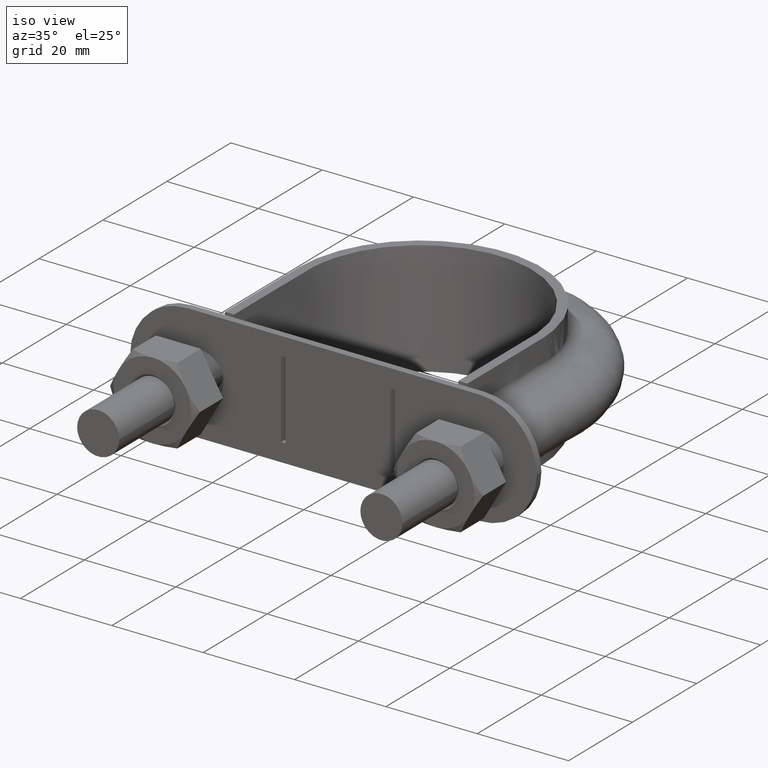
[diagram: clean part render]
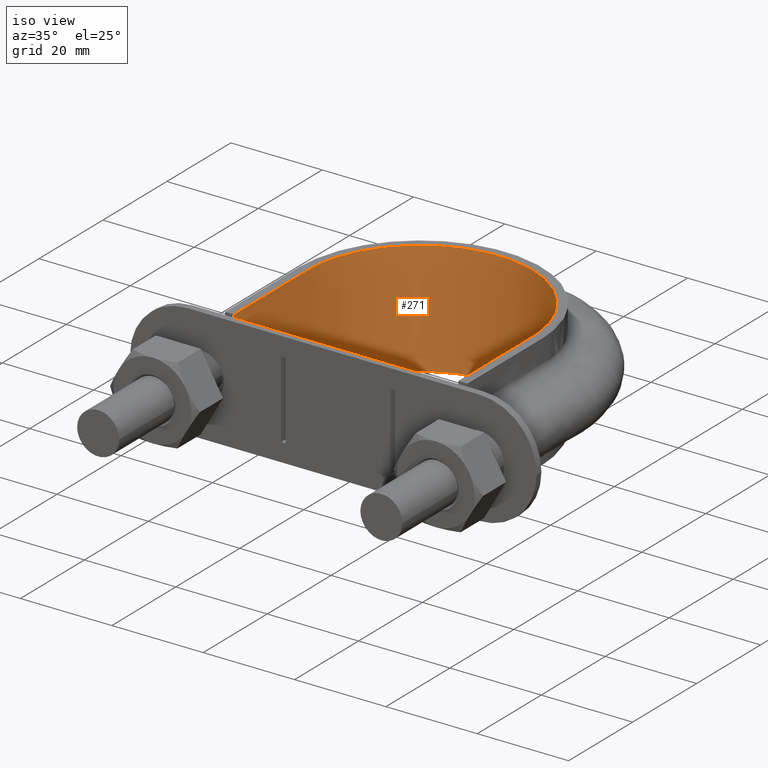
[diagram: same view with one face highlighted and labeled with its STEP entity id]
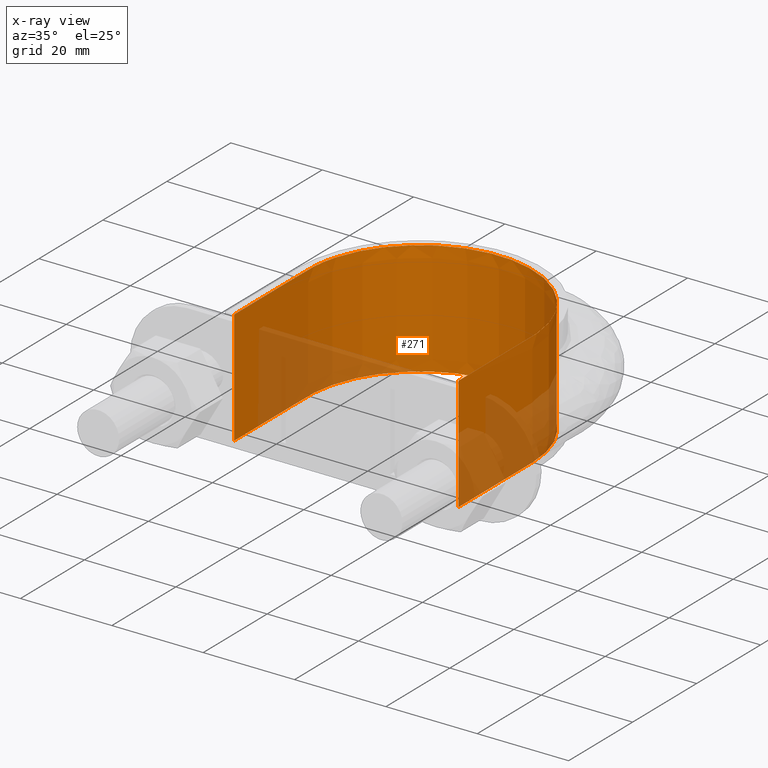
[diagram: x-ray of the same camera — body ghosted, the highlighted face saturated]
A machine part, iso view. The second image highlights one B-rep face of the part: STEP entity #271.
The next image is the same camera in x-ray: the body ghosted, the highlighted face saturated — about 27% of this face is hidden behind the body in this view.
In plain terms, the highlighted face is a SurfaceOfExtrusion surface.
Its self-contained STEP definition (entity closure, byte-faithful):
#271 = ADVANCED_FACE( '', ( #391 ), #392, .T. );
#391 = FACE_OUTER_BOUND( '', #1174, .T. );
#392 = SURFACE_OF_LINEAR_EXTRUSION( '', #1175, #1176 );
#1174 = EDGE_LOOP( '', ( #1747, #1748, #1749, #1750 ) );
#1175 = B_SPLINE_CURVE_WITH_KNOTS( '', 3, ( #1751, #1752, #1753, #1754, #1755, #1756, #1757, #1758, #1759, #1760, #1761, #1762, #1763, #1764, #1765, #1766, #1767 ), .UNSPECIFIED., .F., .F., ( 4, 3, 1, 1, 1, 1, 1, 1, 1, 3, 4 ), ( -7.85424354243542, -7.00000000000000, -6.50000000000000, -6.00000000000000, -5.00000000000000, -4.00000000000000, -3.00000000000000, -2.00000000000000, -1.50000000000000, -1.00000000000000, -0.145756457564576 ), .UNSPECIFIED. );
#1176 = VECTOR( '', #1768, 1000.00000000000 );
#1747 = ORIENTED_EDGE( '', *, *, #2545, .T. );
#1748 = ORIENTED_EDGE( '', *, *, #2558, .T. );
#1749 = ORIENTED_EDGE( '', *, *, #2551, .F. );
#1750 = ORIENTED_EDGE( '', *, *, #2555, .T. );
#1751 = CARTESIAN_POINT( '', ( 24.5500000000000, 33.3000000000000, 12.5000100000910 ) );
#1752 = CARTESIAN_POINT( '', ( 24.5500000000000, 41.0166666666667, 12.5000100000910 ) );
#1753 = CARTESIAN_POINT( '', ( 24.5500000000000, 48.7333333333333, 12.5000100000910 ) );
#1754 = CARTESIAN_POINT( '', ( 24.5500000000000, 56.4500000000000, 12.5000100000910 ) );
#1755 = CARTESIAN_POINT( '', ( 24.5500000000000, 58.5780025041717, 12.5000100000910 ) );
#1756 = CARTESIAN_POINT( '', ( 23.9738358905282, 62.8798607773325, 12.5000100000910 ) );
#1757 = CARTESIAN_POINT( '', ( 20.6884777838097, 70.8633071998794, 12.5000100000910 ) );
#1758 = CARTESIAN_POINT( '', ( 12.8483754366917, 78.7059313144219, 12.5000100000910 ) );
#1759 = CARTESIAN_POINT( '', ( 1.69986719242917E-014, 82.1470343427890, 12.5000100000910 ) );
#1760 = CARTESIAN_POINT( '', ( -12.8483754366917, 78.7059313144219, 12.5000100000910 ) );
#1761 = CARTESIAN_POINT( '', ( -20.6884777838097, 70.8633071998795, 12.5000100000910 ) );
#1762 = CARTESIAN_POINT( '', ( -23.9738358905281, 62.8798607773325, 12.5000100000910 ) );
#1763 = CARTESIAN_POINT( '', ( -24.5500000000000, 58.5780025041717, 12.5000100000910 ) );
#1764 = CARTESIAN_POINT( '', ( -24.5500000000000, 56.4500000000000, 12.5000100000910 ) );
#1765 = CARTESIAN_POINT( '', ( -24.5500000000000, 48.7333333333333, 12.5000100000910 ) );
#1766 = CARTESIAN_POINT( '', ( -24.5500000000000, 41.0166666666667, 12.5000100000910 ) );
#1767 = CARTESIAN_POINT( '', ( -24.5500000000000, 33.3000000000000, 12.5000100000910 ) );
#1768 = DIRECTION( '', ( 0.000000000000000, 0.000000000000000, -1.00000000000000 ) );
#2545 = EDGE_CURVE( '', #2785, #2786, #2787, .T. );
#2551 = EDGE_CURVE( '', #2795, #2798, #2799, .T. );
#2555 = EDGE_CURVE( '', #2795, #2785, #2805, .T. );
#2558 = EDGE_CURVE( '', #2786, #2798, #2808, .F. );
#2785 = VERTEX_POINT( '', #3183 );
#2786 = VERTEX_POINT( '', #3184 );
#2787 = LINE( '', #3185, #3186 );
#2795 = VERTEX_POINT( '', #3235 );
#2798 = VERTEX_POINT( '', #3239 );
#2799 = LINE( '', #3240, #3241 );
#2805 = B_SPLINE_CURVE_WITH_KNOTS( '', 3, ( #3287, #3288, #3289, #3290, #3291, #3292, #3293, #3294, #3295, #3296, #3297, #3298, #3299, #3300, #3301, #3302, #3303, #3304, #3305, #3306, #3307, #3308, #3309, #3310, #3311, #3312, #3313, #3314, #3315, #3316, #3317, #3318, #3319, #3320, #3321, #3322, #3323, #3324, #3325, #3326, #3327, #3328, #3329, #3330, #3331, #3332, #3333, #3334, #3335, #3336, #3337, #3338, #3339, #3340, #3341, #3342, #3343, #3344, #3345, #3346, #3347, #3348, #3349, #3350, #3351, #3352, #3353 ), .UNSPECIFIED., .F., .F., ( 4, 1, 2, 2, 2, 2, 2, 2, 2, 2, 2, 2, 2, 2, 2, 2, 2, 2, 2, 2, 2, 2, 2, 2, 2, 2, 2, 2, 2, 2, 2, 2, 1, 1, 4 ), ( 0.000000000000000, 0.0154145326467004, 0.0231217989700507, 0.0250486155508882, 0.0269754321317258, 0.0308290652934009, 0.0346826984550760, 0.0366095150359135, 0.0385363316167511, 0.0423899647784262, 0.0443167813592637, 0.0462435979401013, 0.0500972311017764, 0.0520240476826140, 0.0539508642634516, 0.0578044974251267, 0.0597313140059643, 0.0616581305868018, 0.0655117637484770, 0.0674385803293146, 0.0693653969101521, 0.0732190300718273, 0.0751458466526648, 0.0770726632335024, 0.0809262963951775, 0.0828531129760151, 0.0847799295568526, 0.0924871958802029, 0.0944140124610405, 0.0963408290418781, 0.100194462203553, 0.102121278784391, 0.104048095365228, 0.107901728526903, 0.123316261173604 ), .UNSPECIFIED. );
#2808 = B_SPLINE_CURVE_WITH_KNOTS( '', 3, ( #3388, #3389, #3390, #3391, #3392, #3393, #3394, #3395, #3396, #3397, #3398, #3399, #3400, #3401, #3402, #3403, #3404 ), .UNSPECIFIED., .F., .F., ( 4, 3, 1, 1, 1, 1, 1, 1, 1, 3, 4 ), ( -7.85424354243542, -7.00000000000000, -6.50000000000000, -6.00000000000000, -5.00000000000000, -4.00000000000000, -3.00000000000000, -2.00000000000000, -1.50000000000000, -1.00000000000000, -0.145756457564576 ), .UNSPECIFIED. );
#3183 = CARTESIAN_POINT( '', ( -24.5500000000000, 33.3000000000000, 12.5000000000000 ) );
#3184 = CARTESIAN_POINT( '', ( -24.5500000000000, 33.3000000000000, -12.5000000000000 ) );
#3185 = CARTESIAN_POINT( '', ( -24.5500000000000, 33.3000000000000, 12.5000100000910 ) );
#3186 = VECTOR( '', #4049, 1000.00000000000 );
#3235 = CARTESIAN_POINT( '', ( 24.5500000000000, 33.3000000000000, 12.5000000000000 ) );
#3239 = CARTESIAN_POINT( '', ( 24.5500000000000, 33.3000000000000, -12.5000000000000 ) );
#3240 = CARTESIAN_POINT( '', ( 24.5500000000000, 33.3000000000000, 12.5000100000910 ) );
#3241 = VECTOR( '', #4053, 1000.00000000000 );
#3287 = CARTESIAN_POINT( '', ( 24.5500000000000, 33.3000000000000, 12.5000000000000 ) );
#3288 = CARTESIAN_POINT( '', ( 24.5500000000000, 38.4384221999800, 12.5000000000000 ) );
#3289 = CARTESIAN_POINT( '', ( 24.5500000000000, 46.1460554999500, 12.5000000000000 ) );
#3290 = CARTESIAN_POINT( '', ( 24.5500000000000, 53.8536887999200, 12.5000000000000 ) );
#3291 = CARTESIAN_POINT( '', ( 24.5500000000000, 57.0652026749075, 12.5000000000000 ) );
#3292 = CARTESIAN_POINT( '', ( 24.5252751330927, 57.7072641688935, 12.5000000000000 ) );
#3293 = CARTESIAN_POINT( '', ( 24.4234462537603, 58.9908760077758, 12.5000000000000 ) );
#3294 = CARTESIAN_POINT( '', ( 24.3467657946690, 59.6342202589337, 12.5000000000000 ) );
#3295 = CARTESIAN_POINT( '', ( 24.0418819320212, 61.5512040485105, 12.5000000000000 ) );
#3296 = CARTESIAN_POINT( '', ( 23.7423938741595, 62.7980756143652, 12.5000000000000 ) );
#3297 = CARTESIAN_POINT( '', ( 22.9567434107525, 65.2314557302550, 12.5000000000000 ) );
#3298 = CARTESIAN_POINT( '', ( 22.4705596365818, 66.4179573705317, 12.5000000000000 ) );
#3299 = CARTESIAN_POINT( '', ( 21.5925627875952, 68.1496193486760, 12.5000000000000 ) );
#3300 = CARTESIAN_POINT( '', ( 21.2766071075013, 68.7149736051725, 12.5000000000000 ) );
#3301 = CARTESIAN_POINT( '', ( 20.6053719022684, 69.8105348664258, 12.5000000000000 ) );
#3302 = CARTESIAN_POINT( '', ( 20.2492833691970, 70.3426982596920, 12.5000000000000 ) );
#3303 = CARTESIAN_POINT( '', ( 19.1215068537776, 71.8937876646727, 12.5000000000000 ) );
#3304 = CARTESIAN_POINT( '', ( 18.2907926568852, 72.8676826796255, 12.5000000000000 ) );
#3305 = CARTESIAN_POINT( '', ( 16.9250762587395, 74.2372481605127, 12.5000000000000 ) );
#3306 = CARTESIAN_POINT( '', ( 16.4483141734126, 74.6794580763296, 12.5000000000000 ) );
#3307 = CARTESIAN_POINT( '', ( 15.4703087185620, 75.5179842065183, 12.5000000000000 ) );
#3308 = CARTESIAN_POINT( '', ( 14.9674075928234, 75.9161548866917, 12.5000000000000 ) );
#3309 = CARTESIAN_POINT( '', ( 13.4174319314452, 77.0480315871901, 12.5000000000000 ) );
#3310 = CARTESIAN_POINT( '', ( 12.3291014903936, 77.7191271240917, 12.5000000000000 ) );
#3311 = CARTESIAN_POINT( '', ( 10.6113550739498, 78.5963928065052, 12.5000000000000 ) );
#3312 = CARTESIAN_POINT( '', ( 10.0221200459751, 78.8683847934330, 12.5000000000000 ) );
#3313 = CARTESIAN_POINT( '', ( 8.82789979738709, 79.3633140784713, 12.5000000000000 ) );
#3314 = CARTESIAN_POINT( '', ( 8.22453257139354, 79.5858617099619, 12.5000000000000 ) );
#3315 = CARTESIAN_POINT( '', ( 6.39627757875419, 80.1812145309662, 12.5000000000000 ) );
#3316 = CARTESIAN_POINT( '', ( 5.15338195845829, 80.4823089013905, 12.5000000000000 ) );
#3317 = CARTESIAN_POINT( '', ( 3.25266287101839, 80.7890954282829, 12.5000000000000 ) );
#3318 = CARTESIAN_POINT( '', ( 2.61299113566842, 80.8670713549402, 12.5000000000000 ) );
#3319 = CARTESIAN_POINT( '', ( 1.32093241036629, 80.9723885607186, 12.5000000000000 ) );
#3320 = CARTESIAN_POINT( '', ( 0.676406080425034, 80.9990466751685, 12.5000000000000 ) );
#3321 = CARTESIAN_POINT( '', ( -1.24870371014289, 81.0018313487211, 12.5000000000000 ) );
#3322 = CARTESIAN_POINT( '', ( -2.52265182528388, 80.9014678182981, 12.5000000000000 ) );
#3323 = CARTESIAN_POINT( '', ( -4.41989760294862, 80.6031174963140, 12.5000000000000 ) );
#3324 = CARTESIAN_POINT( '', ( -5.05001948103532, 80.4788821105621, 12.5000000000000 ) );
#3325 = CARTESIAN_POINT( '', ( -6.30559148152664, 80.1799222321459, 12.5000000000000 ) );
#3326 = CARTESIAN_POINT( '', ( -6.93138081059488, 80.0048019462483, 12.5000000000000 ) );
#3327 = CARTESIAN_POINT( '', ( -8.76889753233641, 79.4125614462541, 12.5000000000000 ) );
#3328 = CARTESIAN_POINT( '', ( -9.95225725658828, 78.9267801345634, 12.5000000000000 ) );
#3329 = CARTESIAN_POINT( '', ( -11.6646188489647, 78.0612380840055, 12.5000000000000 ) );
#3330 = CARTESIAN_POINT( '', ( -12.2248697137770, 77.7497158527538, 12.5000000000000 ) );
#3331 = CARTESIAN_POINT( '', ( -13.3236776153922, 77.0792985269673, 12.5000000000000 ) );
#3332 = CARTESIAN_POINT( '', ( -13.8646027205756, 76.7187643121761, 12.5000000000000 ) );
#3333 = CARTESIAN_POINT( '', ( -15.4323331862349, 75.5816103428784, 12.5000000000000 ) );
#3334 = CARTESIAN_POINT( '', ( -16.4066904175185, 74.7499313198934, 12.5000000000000 ) );
#3335 = CARTESIAN_POINT( '', ( -17.7664797273136, 73.3966709647585, 12.5000000000000 ) );
#3336 = CARTESIAN_POINT( '', ( -18.2026751411942, 72.9278462929921, 12.5000000000000 ) );
#3337 = CARTESIAN_POINT( '', ( -19.0403725195660, 71.9541411916242, 12.5000000000000 ) );
#3338 = CARTESIAN_POINT( '', ( -19.4425779981798, 71.4483024401625, 12.5000000000000 ) );
#3339 = CARTESIAN_POINT( '', ( -21.3557319354796, 68.8353834350350, 12.5000000000000 ) );
#3340 = CARTESIAN_POINT( '', ( -22.5176023500941, 66.5595033352519, 12.5000000000000 ) );
#3341 = CARTESIAN_POINT( '', ( -23.5216696114527, 63.4890361381941, 12.5000000000000 ) );
#3342 = CARTESIAN_POINT( '', ( -23.6990122608683, 62.8647462965357, 12.5000000000000 ) );
#3343 = CARTESIAN_POINT( '', ( -24.0024245935730, 61.6147239867793, 12.5000000000000 ) );
#3344 = CARTESIAN_POINT( '', ( -24.1294131227665, 60.9864283058244, 12.5000000000000 ) );
#3345 = CARTESIAN_POINT( '', ( -24.4371992964721, 59.0918170449202, 12.5000000000000 ) );
#3346 = CARTESIAN_POINT( '', ( -24.5457173567177, 57.8158968179809, 12.5000000000000 ) );
#3347 = CARTESIAN_POINT( '', ( -24.5519571685428, 55.8812155098234, 12.5000000000000 ) );
#3348 = CARTESIAN_POINT( '', ( -24.5500000000000, 55.2357852822297, 12.5000000000000 ) );
#3349 = CARTESIAN_POINT( '', ( -24.5500000000000, 53.9454449715103, 12.5000000000000 ) );
#3350 = CARTESIAN_POINT( '', ( -24.5500000000000, 52.0099345054311, 12.5000000000000 ) );
#3351 = CARTESIAN_POINT( '', ( -24.5500000000000, 44.9130627964746, 12.5000000000000 ) );
#3352 = CARTESIAN_POINT( '', ( -24.5500000000000, 38.4613612428776, 12.5000000000000 ) );
#3353 = CARTESIAN_POINT( '', ( -24.5500000000000, 33.3000000000000, 12.5000000000000 ) );
#3388 = CARTESIAN_POINT( '', ( 24.5500000000000, 33.3000000000000, -12.5000000000000 ) );
#3389 = CARTESIAN_POINT( '', ( 24.5500000000000, 41.0166666666667, -12.5000000000000 ) );
#3390 = CARTESIAN_POINT( '', ( 24.5500000000000, 48.7333333333333, -12.5000000000000 ) );
#3391 = CARTESIAN_POINT( '', ( 24.5500000000000, 56.4500000000000, -12.5000000000000 ) );
#3392 = CARTESIAN_POINT( '', ( 24.5500000000000, 58.5780025041717, -12.5000000000000 ) );
#3393 = CARTESIAN_POINT( '', ( 23.9738358905282, 62.8798607773325, -12.5000000000000 ) );
#3394 = CARTESIAN_POINT( '', ( 20.6884777838097, 70.8633071998794, -12.5000000000000 ) );
#3395 = CARTESIAN_POINT( '', ( 12.8483754366917, 78.7059313144219, -12.5000000000000 ) );
#3396 = CARTESIAN_POINT( '', ( 1.69986719242917E-014, 82.1470343427890, -12.5000000000000 ) );
#3397 = CARTESIAN_POINT( '', ( -12.8483754366917, 78.7059313144219, -12.5000000000000 ) );
#3398 = CARTESIAN_POINT( '', ( -20.6884777838097, 70.8633071998795, -12.5000000000000 ) );
#3399 = CARTESIAN_POINT( '', ( -23.9738358905281, 62.8798607773325, -12.5000000000000 ) );
#3400 = CARTESIAN_POINT( '', ( -24.5500000000000, 58.5780025041717, -12.5000000000000 ) );
#3401 = CARTESIAN_POINT( '', ( -24.5500000000000, 56.4500000000000, -12.5000000000000 ) );
#3402 = CARTESIAN_POINT( '', ( -24.5500000000000, 48.7333333333333, -12.5000000000000 ) );
#3403 = CARTESIAN_POINT( '', ( -24.5500000000000, 41.0166666666667, -12.5000000000000 ) );
#3404 = CARTESIAN_POINT( '', ( -24.5500000000000, 33.3000000000000, -12.5000000000000 ) );
#4049 = DIRECTION( '', ( 0.000000000000000, 0.000000000000000, -1.00000000000000 ) );
#4053 = DIRECTION( '', ( 0.000000000000000, 0.000000000000000, -1.00000000000000 ) );